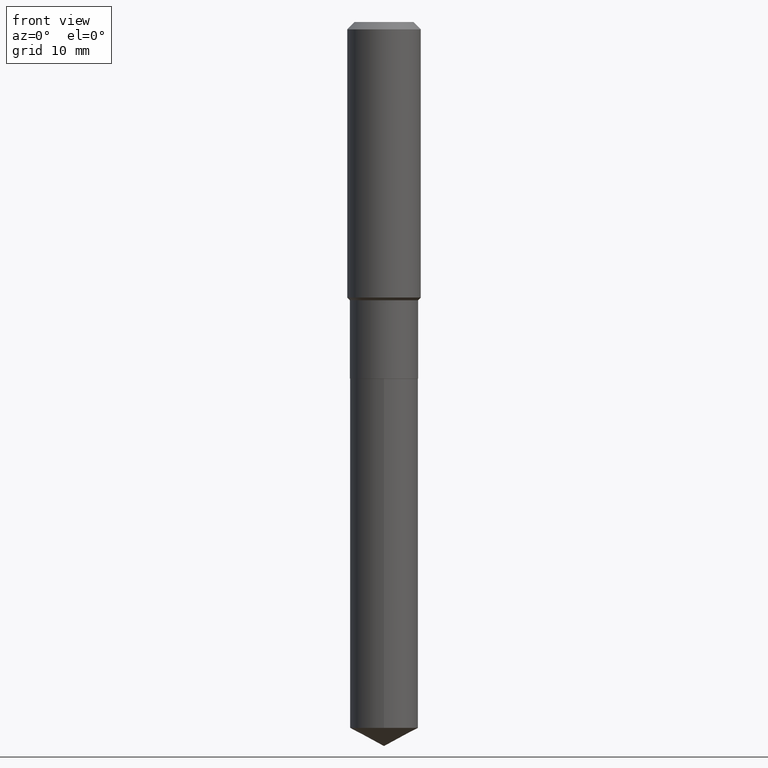
[diagram: clean part render]
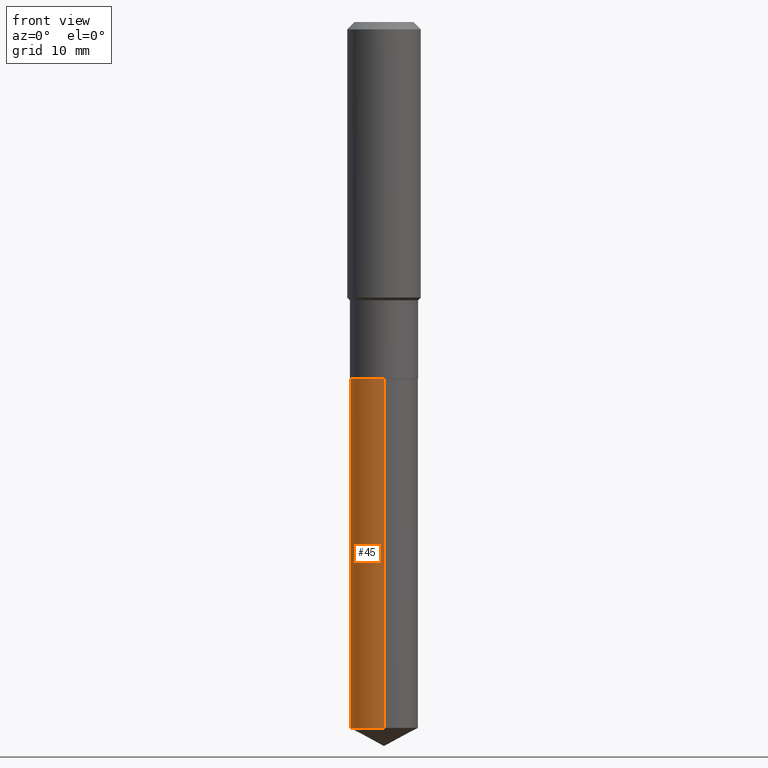
[diagram: same view with one face highlighted and labeled with its STEP entity id]
A machine part, front view. The second image highlights one B-rep face of the part: STEP entity #45.
In plain terms, the highlighted cylindrical surface (edge-blend (fillet) strip) has radius 5.5562 mm, axis along (-0, 0, 1).
Its self-contained STEP definition (entity closure, byte-faithful):
#7 = DIRECTION ( 'NONE',  ( -6.982962677686265133E-15, -1.000000000000000000, 2.497689594207326371E-15 ) ) ;
#19 = ORIENTED_EDGE ( 'NONE', *, *, #456, .T. ) ;
#27 = CARTESIAN_POINT ( 'NONE',  ( 5.596455362954686241E-29, -7.990255043942539745E-15, -2.288499999999999979 ) ) ;
#29 = AXIS2_PLACEMENT_3D ( 'NONE', #88, #34, #487 ) ;
#34 = DIRECTION ( 'NONE',  ( -2.445516523471432488E-29, 3.491413004973270552E-15, 1.000000000000000000 ) ) ;
#45 = ADVANCED_FACE ( 'NONE', ( #212 ), #214, .T. ) ;
#59 = VERTEX_POINT ( 'NONE', #371 ) ;
#63 = ORIENTED_EDGE ( 'NONE', *, *, #296, .T. ) ;
#71 = ORIENTED_EDGE ( 'NONE', *, *, #258, .F. ) ;
#88 = CARTESIAN_POINT ( 'NONE',  ( 5.596455362954686241E-29, -7.990255043942539745E-15, -2.288499999999999979 ) ) ;
#91 = VERTEX_POINT ( 'NONE', #440 ) ;
#92 = AXIS2_PLACEMENT_3D ( 'NONE', #244, #424, #7 ) ;
#110 = ORIENTED_EDGE ( 'NONE', *, *, #138, .F. ) ;
#120 = DIRECTION ( 'NONE',  ( -2.445516523471432488E-29, 3.491413004973270552E-15, 1.000000000000000000 ) ) ;
#138 = EDGE_CURVE ( 'NONE', #59, #389, #287, .T. ) ;
#154 = CARTESIAN_POINT ( 'NONE',  ( -1.527523085743814439E-15, -0.2187500000000079659, -2.288499999999999535 ) ) ;
#188 = DIRECTION ( 'NONE',  ( -2.445516523471432488E-29, 3.491413004973270552E-15, 1.000000000000000000 ) ) ;
#193 = LINE ( 'NONE', #341, #406 ) ;
#212 = FACE_OUTER_BOUND ( 'NONE', #234, .T. ) ;
#214 = CYLINDRICAL_SURFACE ( 'NONE', #235, 0.2187500000000000000 ) ;
#234 = EDGE_LOOP ( 'NONE', ( #71, #63, #19, #110 ) ) ;
#235 = AXIS2_PLACEMENT_3D ( 'NONE', #27, #248, #323 ) ;
#244 = CARTESIAN_POINT ( 'NONE',  ( 1.107731902311058001E-28, -1.581516993529237570E-14, -4.529688561824052329 ) ) ;
#248 = DIRECTION ( 'NONE',  ( -2.445516523471432488E-29, 3.491413004973270552E-15, 1.000000000000000000 ) ) ;
#258 = EDGE_CURVE ( 'NONE', #91, #59, #193, .T. ) ;
#287 = CIRCLE ( 'NONE', #29, 0.2187500000000000000 ) ;
#296 = EDGE_CURVE ( 'NONE', #91, #362, #414, .T. ) ;
#323 = DIRECTION ( 'NONE',  ( -6.982962677686265133E-15, -1.000000000000000000, 3.746534391310989557E-15 ) ) ;
#341 = CARTESIAN_POINT ( 'NONE',  ( 1.554312234475274969E-15, 0.2187499999999920064, -2.288500000000000867 ) ) ;
#347 = VECTOR ( 'NONE', #188, 39.37007874015748143 ) ;
#356 = CARTESIAN_POINT ( 'NONE',  ( -1.527523085743759811E-15, -0.2187500000000157929, -4.529688561824051440 ) ) ;
#362 = VERTEX_POINT ( 'NONE', #356 ) ;
#371 = CARTESIAN_POINT ( 'NONE',  ( 1.554312234475330189E-15, 0.2187499999999920064, -2.288500000000000867 ) ) ;
#389 = VERTEX_POINT ( 'NONE', #469 ) ;
#406 = VECTOR ( 'NONE', #120, 39.37007874015748143 ) ;
#414 = CIRCLE ( 'NONE', #92, 0.2187500000000000000 ) ;
#424 = DIRECTION ( 'NONE',  ( -2.445516523471432488E-29, 3.491413004973270552E-15, 1.000000000000000000 ) ) ;
#440 = CARTESIAN_POINT ( 'NONE',  ( 1.554312234475329992E-15, 0.2187499999999842071, -4.529688561824053217 ) ) ;
#456 = EDGE_CURVE ( 'NONE', #362, #389, #481, .T. ) ;
#469 = CARTESIAN_POINT ( 'NONE',  ( -1.527523085743814439E-15, -0.2187500000000079659, -2.288499999999999535 ) ) ;
#481 = LINE ( 'NONE', #154, #347 ) ;
#487 = DIRECTION ( 'NONE',  ( -6.982962677686265133E-15, -1.000000000000000000, 3.746534391310989557E-15 ) ) ;